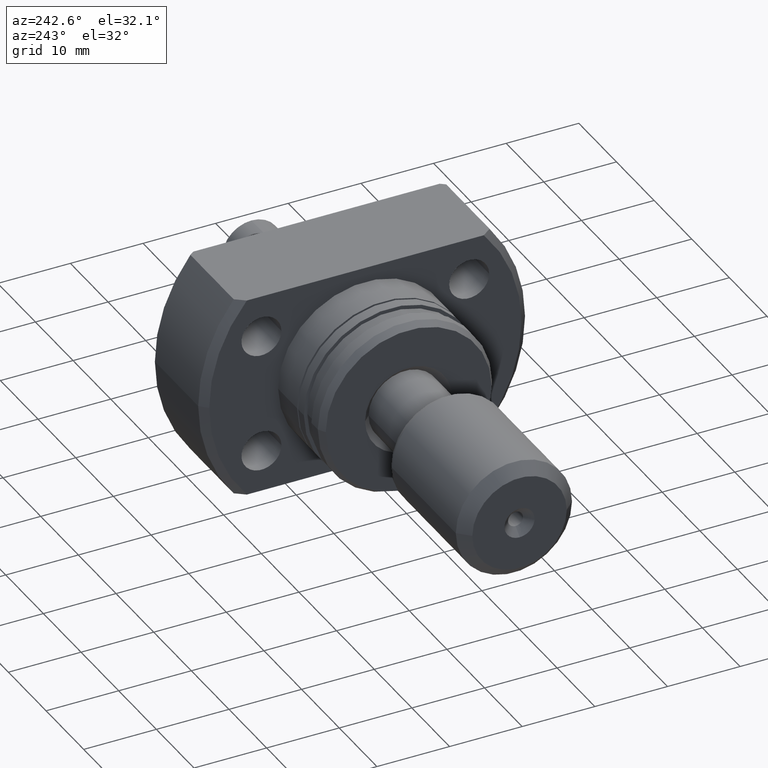
[diagram: clean part render]
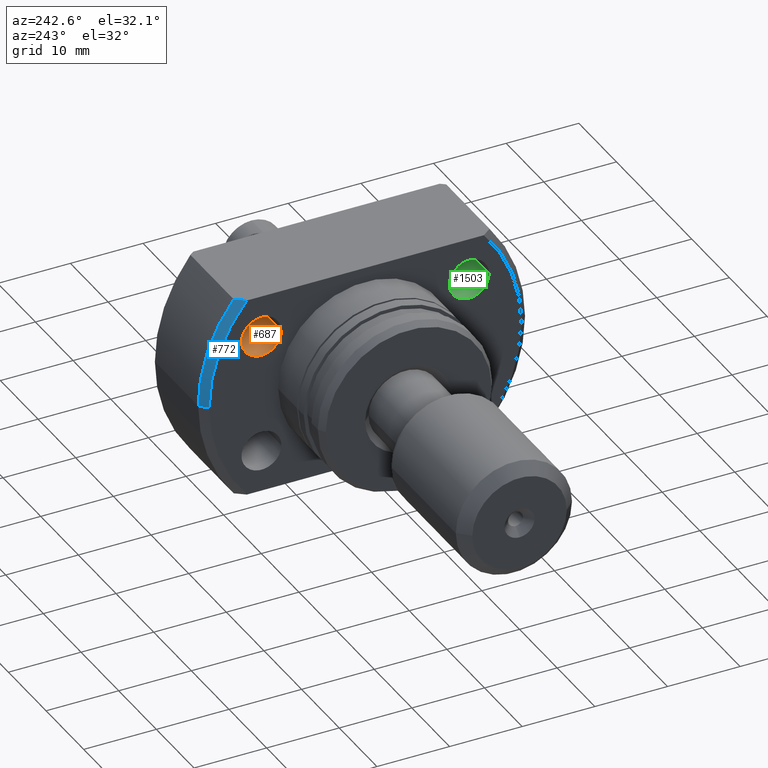
[diagram: same view with three faces highlighted in distinct colors, each labeled with its STEP entity id]
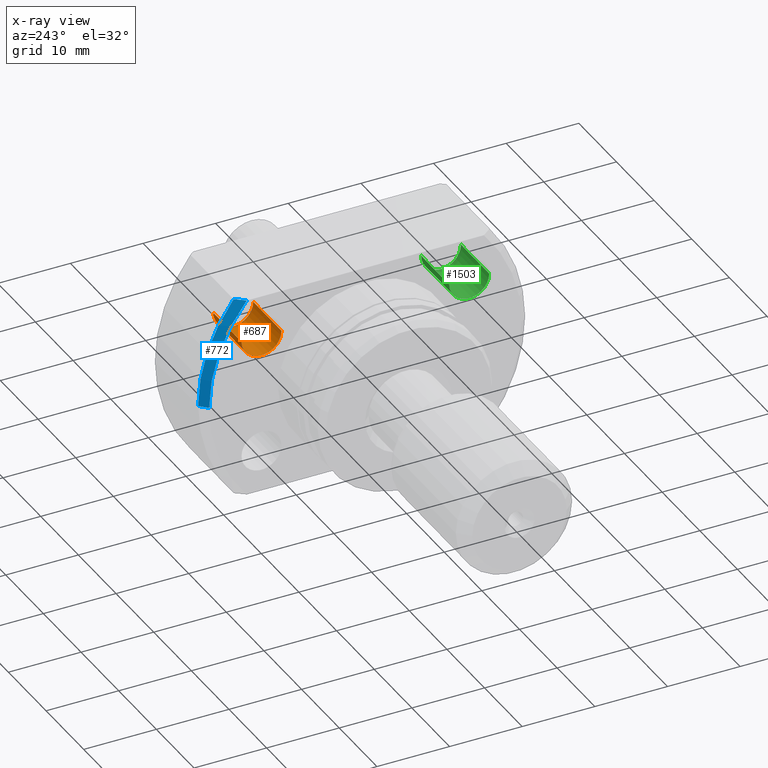
[diagram: x-ray of the same camera — body ghosted, the three highlighted faces saturated]
A machine part, auxiliary view with three faces highlighted in distinct colors.
The next image is the same camera in x-ray (body ghosted, the three faces saturated) — at least one of them is partly hidden behind the body in this view.
Their STEP definitions:

[orange] entity #687 — the highlighted cylindrical surface (edge-blend (fillet) strip) has radius 2.75 mm, axis along (1, -0, 0).
#52 = DIRECTION ( 'NONE',  ( 2.901719268906659886E-14, 1.000000000000000000, 0.000000000000000000 ) ) ;
#239 = DIRECTION ( 'NONE',  ( 1.000000000000000000, -2.886466111666351885E-14, -0.000000000000000000 ) ) ;
#265 = CARTESIAN_POINT ( 'NONE',  ( 19.00000000000049383, 17.04999999999945359, 8.250000000000003553 ) ) ;
#479 = VERTEX_POINT ( 'NONE', #265 ) ;
#500 = FACE_OUTER_BOUND ( 'NONE', #2249, .T. ) ;
#592 = DIRECTION ( 'NONE',  ( 0.000000000000000000, 1.000000000000000000, 0.000000000000000000 ) ) ;
#607 = CARTESIAN_POINT ( 'NONE',  ( 11.49999999999978506, 14.29999999999967208, 8.250000000000003553 ) ) ;
#687 = ADVANCED_FACE ( 'NONE', ( #500 ), #1847, .F. ) ;
#724 = DIRECTION ( 'NONE',  ( 2.886466111666352516E-14, 1.000000000000000000, 0.000000000000000000 ) ) ;
#891 = CARTESIAN_POINT ( 'NONE',  ( 19.00000000000033396, 11.54999999999945537, 8.250000000000003553 ) ) ;
#955 = LINE ( 'NONE', #1167, #2384 ) ;
#1008 = ORIENTED_EDGE ( 'NONE', *, *, #3652, .T. ) ;
#1123 = LINE ( 'NONE', #3303, #3410 ) ;
#1167 = CARTESIAN_POINT ( 'NONE',  ( -3.153002108036704669E-13, 11.55000000000000426, 8.250000000000003553 ) ) ;
#1196 = VERTEX_POINT ( 'NONE', #2124 ) ;
#1284 = DIRECTION ( 'NONE',  ( 1.000000000000000000, -2.886466111666351885E-14, -0.000000000000000000 ) ) ;
#1418 = CARTESIAN_POINT ( 'NONE',  ( 19.00000000000041211, 14.29999999999945537, 8.250000000000003553 ) ) ;
#1428 = EDGE_CURVE ( 'NONE', #3342, #1196, #2449, .T. ) ;
#1429 = VERTEX_POINT ( 'NONE', #891 ) ;
#1464 = DIRECTION ( 'NONE',  ( 1.000000000000000000, -2.886466111666351885E-14, -0.000000000000000000 ) ) ;
#1548 = CARTESIAN_POINT ( 'NONE',  ( 11.49999999999978506, 11.54999999999967208, 8.250000000000003553 ) ) ;
#1556 = ORIENTED_EDGE ( 'NONE', *, *, #1428, .F. ) ;
#1632 = AXIS2_PLACEMENT_3D ( 'NONE', #1418, #3453, #52 ) ;
#1701 = EDGE_CURVE ( 'NONE', #1196, #479, #1123, .T. ) ;
#1847 = CYLINDRICAL_SURFACE ( 'NONE', #3631, 2.749999999999999112 ) ;
#1923 = EDGE_CURVE ( 'NONE', #3342, #1429, #955, .T. ) ;
#2124 = CARTESIAN_POINT ( 'NONE',  ( 11.49999999999978506, 17.04999999999967386, 8.250000000000003553 ) ) ;
#2249 = EDGE_LOOP ( 'NONE', ( #1556, #2735, #1008, #3294 ) ) ;
#2275 = DIRECTION ( 'NONE',  ( 1.000000000000000000, 4.998558363877804092E-19, -0.000000000000000000 ) ) ;
#2384 = VECTOR ( 'NONE', #1464, 1000.000000000000000 ) ;
#2408 = CARTESIAN_POINT ( 'NONE',  ( -2.359223927328457648E-13, 14.30000000000000426, 8.250000000000003553 ) ) ;
#2449 = CIRCLE ( 'NONE', #3640, 2.750000000000000888 ) ;
#2735 = ORIENTED_EDGE ( 'NONE', *, *, #1923, .T. ) ;
#3228 = CIRCLE ( 'NONE', #1632, 2.749999999999999112 ) ;
#3294 = ORIENTED_EDGE ( 'NONE', *, *, #1701, .F. ) ;
#3303 = CARTESIAN_POINT ( 'NONE',  ( -1.565445746620210880E-13, 17.05000000000000426, 8.250000000000003553 ) ) ;
#3342 = VERTEX_POINT ( 'NONE', #1548 ) ;
#3410 = VECTOR ( 'NONE', #239, 1000.000000000000000 ) ;
#3453 = DIRECTION ( 'NONE',  ( 1.000000000000000000, -2.886466111666351885E-14, 0.000000000000000000 ) ) ;
#3631 = AXIS2_PLACEMENT_3D ( 'NONE', #2408, #1284, #724 ) ;
#3640 = AXIS2_PLACEMENT_3D ( 'NONE', #607, #2275, #592 ) ;
#3652 = EDGE_CURVE ( 'NONE', #1429, #479, #3228, .T. ) ;

[blue] entity #772 — the highlighted conical surface has half-angle 45 deg.
#37 = EDGE_LOOP ( 'NONE', ( #1455, #2957, #1531, #740 ) ) ;
#150 = AXIS2_PLACEMENT_3D ( 'NONE', #2947, #3496, #464 ) ;
#279 = CARTESIAN_POINT ( 'NONE',  ( 12.49999999999977263, 17.61391495380878425, 13.99999999999999645 ) ) ;
#400 = VECTOR ( 'NONE', #2333, 1000.000000000000000 ) ;
#438 = CARTESIAN_POINT ( 'NONE',  ( 11.49999999999978861, 21.49999999999992184, 0.000000000000000000 ) ) ;
#444 = DIRECTION ( 'NONE',  ( 1.000000000000000000, 4.998558363877804092E-19, -0.000000000000000000 ) ) ;
#464 = DIRECTION ( 'NONE',  ( 0.000000000000000000, 1.000000000000000000, 0.000000000000000000 ) ) ;
#702 = DIRECTION ( 'NONE',  ( 0.000000000000000000, 1.000000000000000000, 0.000000000000000000 ) ) ;
#740 = ORIENTED_EDGE ( 'NONE', *, *, #3466, .F. ) ;
#749 = CARTESIAN_POINT ( 'NONE',  ( 11.49999999999978861, 16.31716887208061095, 14.00000000000000355 ) ) ;
#772 = ADVANCED_FACE ( 'NONE', ( #993 ), #2089, .T. ) ;
#827 = CARTESIAN_POINT ( 'NONE',  ( 12.16342151182557352, 17.18396987891851424, 14.00000000000000355 ) ) ;
#993 = FACE_OUTER_BOUND ( 'NONE', #37, .T. ) ;
#1275 = CARTESIAN_POINT ( 'NONE',  ( 11.49999999999978861, 5.748342118459368684E-18, 0.000000000000000000 ) ) ;
#1421 = VERTEX_POINT ( 'NONE', #1995 ) ;
#1455 = ORIENTED_EDGE ( 'NONE', *, *, #2908, .F. ) ;
#1531 = ORIENTED_EDGE ( 'NONE', *, *, #3018, .F. ) ;
#1605 = EDGE_CURVE ( 'NONE', #2474, #3637, #3336, .T. ) ;
#1736 = CIRCLE ( 'NONE', #150, 22.49999999999989697 ) ;
#1884 = DIRECTION ( 'NONE',  ( 0.000000000000000000, 1.000000000000000000, 0.000000000000000000 ) ) ;
#1914 = AXIS2_PLACEMENT_3D ( 'NONE', #1275, #444, #702 ) ;
#1995 = CARTESIAN_POINT ( 'NONE',  ( 12.49999999999977263, 22.49999999999989697, 0.000000000000000000 ) ) ;
#2089 = CONICAL_SURFACE ( 'NONE', #3515, 21.49999999999992184, 0.7853981633974439491 ) ;
#2167 = CARTESIAN_POINT ( 'NONE',  ( 11.49999999999978861, 5.748342118459368684E-18, 0.000000000000000000 ) ) ;
#2262 = VERTEX_POINT ( 'NONE', #3149 ) ;
#2333 = DIRECTION ( 'NONE',  ( 0.7071067811865505703, 0.7071067811865444641, 0.000000000000000000 ) ) ;
#2474 = VERTEX_POINT ( 'NONE', #438 ) ;
#2603 = CARTESIAN_POINT ( 'NONE',  ( 11.49999999999978861, 21.49999999999992184, 0.000000000000000000 ) ) ;
#2908 = EDGE_CURVE ( 'NONE', #2474, #1421, #3238, .T. ) ;
#2947 = CARTESIAN_POINT ( 'NONE',  ( 12.49999999999977263, 6.248197954847141582E-18, 0.000000000000000000 ) ) ;
#2957 = ORIENTED_EDGE ( 'NONE', *, *, #1605, .T. ) ;
#2961 = B_SPLINE_CURVE_WITH_KNOTS ( 'NONE', 3,
 ( #279, #827, #3650, #749 ),
 .UNSPECIFIED., .F., .F.,
 ( 4, 4 ),
 ( 0.02825164645976066535, 0.02989446144990340337 ),
 .UNSPECIFIED. ) ;
#3018 = EDGE_CURVE ( 'NONE', #2262, #3637, #2961, .T. ) ;
#3149 = CARTESIAN_POINT ( 'NONE',  ( 12.49999999999977263, 17.61391495380878425, 13.99999999999999645 ) ) ;
#3238 = LINE ( 'NONE', #2603, #400 ) ;
#3293 = DIRECTION ( 'NONE',  ( 1.000000000000000000, 4.998558363877804092E-19, -0.000000000000000000 ) ) ;
#3336 = CIRCLE ( 'NONE', #1914, 21.49999999999992184 ) ;
#3418 = CARTESIAN_POINT ( 'NONE',  ( 11.49999999999978861, 16.31716887208061095, 14.00000000000000355 ) ) ;
#3466 = EDGE_CURVE ( 'NONE', #1421, #2262, #1736, .T. ) ;
#3496 = DIRECTION ( 'NONE',  ( 1.000000000000000000, 4.998558363877804092E-19, -0.000000000000000000 ) ) ;
#3515 = AXIS2_PLACEMENT_3D ( 'NONE', #2167, #3293, #1884 ) ;
#3637 = VERTEX_POINT ( 'NONE', #3418 ) ;
#3650 = CARTESIAN_POINT ( 'NONE',  ( 11.82989979264795011, 16.75185491336265997, 14.00000000000000355 ) ) ;

[green] entity #1503 — the highlighted cylindrical surface (edge-blend (fillet) strip) has radius 2.75 mm, axis along (1, -0, 0).
#72 = ORIENTED_EDGE ( 'NONE', *, *, #3237, .F. ) ;
#219 = ORIENTED_EDGE ( 'NONE', *, *, #1319, .T. ) ;
#317 = CARTESIAN_POINT ( 'NONE',  ( 11.49999999999978506, -11.55000000000032756, 8.250000000000003553 ) ) ;
#343 = CYLINDRICAL_SURFACE ( 'NONE', #2216, 2.749999999999999112 ) ;
#458 = VECTOR ( 'NONE', #605, 1000.000000000000000 ) ;
#532 = CARTESIAN_POINT ( 'NONE',  ( 18.99999999999959144, -14.30000000000054428, 8.250000000000003553 ) ) ;
#571 = VERTEX_POINT ( 'NONE', #2877 ) ;
#604 = EDGE_LOOP ( 'NONE', ( #2060, #2368, #219, #72 ) ) ;
#605 = DIRECTION ( 'NONE',  ( 1.000000000000000000, -2.886466111666351885E-14, -0.000000000000000000 ) ) ;
#829 = VERTEX_POINT ( 'NONE', #1365 ) ;
#973 = CARTESIAN_POINT ( 'NONE',  ( 11.49999999999978506, -17.05000000000032756, 8.250000000000003553 ) ) ;
#1319 = EDGE_CURVE ( 'NONE', #571, #829, #1449, .T. ) ;
#1360 = LINE ( 'NONE', #3337, #1860 ) ;
#1365 = CARTESIAN_POINT ( 'NONE',  ( 18.99999999999966960, -11.55000000000054605, 8.250000000000003553 ) ) ;
#1449 = CIRCLE ( 'NONE', #3035, 2.749999999999999112 ) ;
#1470 = CARTESIAN_POINT ( 'NONE',  ( -1.061650767297805942E-12, -14.29999999999999716, 8.250000000000003553 ) ) ;
#1478 = VERTEX_POINT ( 'NONE', #317 ) ;
#1503 = ADVANCED_FACE ( 'NONE', ( #2324 ), #343, .F. ) ;
#1714 = LINE ( 'NONE', #2866, #458 ) ;
#1860 = VECTOR ( 'NONE', #1929, 1000.000000000000000 ) ;
#1915 = DIRECTION ( 'NONE',  ( 1.000000000000000000, -2.889258529047467066E-14, 0.000000000000000000 ) ) ;
#1929 = DIRECTION ( 'NONE',  ( 1.000000000000000000, -2.886466111666351885E-14, -0.000000000000000000 ) ) ;
#1960 = EDGE_CURVE ( 'NONE', #2377, #1478, #2867, .T. ) ;
#1972 = DIRECTION ( 'NONE',  ( 2.901719268906659886E-14, 1.000000000000000000, 0.000000000000000000 ) ) ;
#1990 = DIRECTION ( 'NONE',  ( 1.000000000000000000, 4.998558363877804092E-19, -0.000000000000000000 ) ) ;
#2060 = ORIENTED_EDGE ( 'NONE', *, *, #1960, .F. ) ;
#2068 = DIRECTION ( 'NONE',  ( 1.000000000000000000, -2.886466111666351885E-14, -0.000000000000000000 ) ) ;
#2190 = EDGE_CURVE ( 'NONE', #2377, #571, #1360, .T. ) ;
#2216 = AXIS2_PLACEMENT_3D ( 'NONE', #1470, #2068, #2587 ) ;
#2324 = FACE_OUTER_BOUND ( 'NONE', #604, .T. ) ;
#2368 = ORIENTED_EDGE ( 'NONE', *, *, #2190, .T. ) ;
#2377 = VERTEX_POINT ( 'NONE', #973 ) ;
#2581 = CARTESIAN_POINT ( 'NONE',  ( 11.49999999999978506, -14.30000000000032756, 8.250000000000003553 ) ) ;
#2587 = DIRECTION ( 'NONE',  ( 2.886466111666349992E-14, 1.000000000000000000, 0.000000000000000000 ) ) ;
#2675 = AXIS2_PLACEMENT_3D ( 'NONE', #2581, #1990, #2956 ) ;
#2866 = CARTESIAN_POINT ( 'NONE',  ( -9.822729492269812397E-13, -11.54999999999999716, 8.250000000000003553 ) ) ;
#2867 = CIRCLE ( 'NONE', #2675, 2.750000000000000888 ) ;
#2877 = CARTESIAN_POINT ( 'NONE',  ( 18.99999999999950973, -17.05000000000054428, 8.250000000000003553 ) ) ;
#2956 = DIRECTION ( 'NONE',  ( 0.000000000000000000, 1.000000000000000000, 0.000000000000000000 ) ) ;
#3035 = AXIS2_PLACEMENT_3D ( 'NONE', #532, #1915, #1972 ) ;
#3237 = EDGE_CURVE ( 'NONE', #1478, #829, #1714, .T. ) ;
#3337 = CARTESIAN_POINT ( 'NONE',  ( -1.141028585368630644E-12, -17.04999999999999716, 8.250000000000003553 ) ) ;